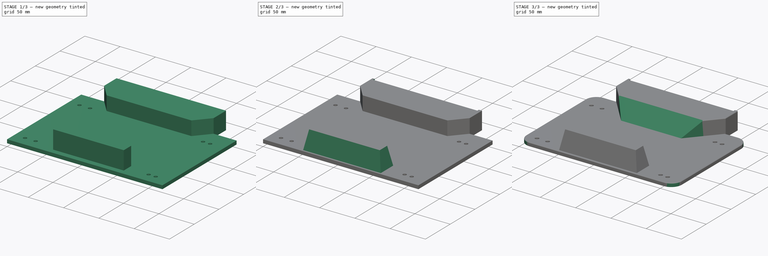
[diagram: build sequence overview — one tinted view per stage of 3, left to right]
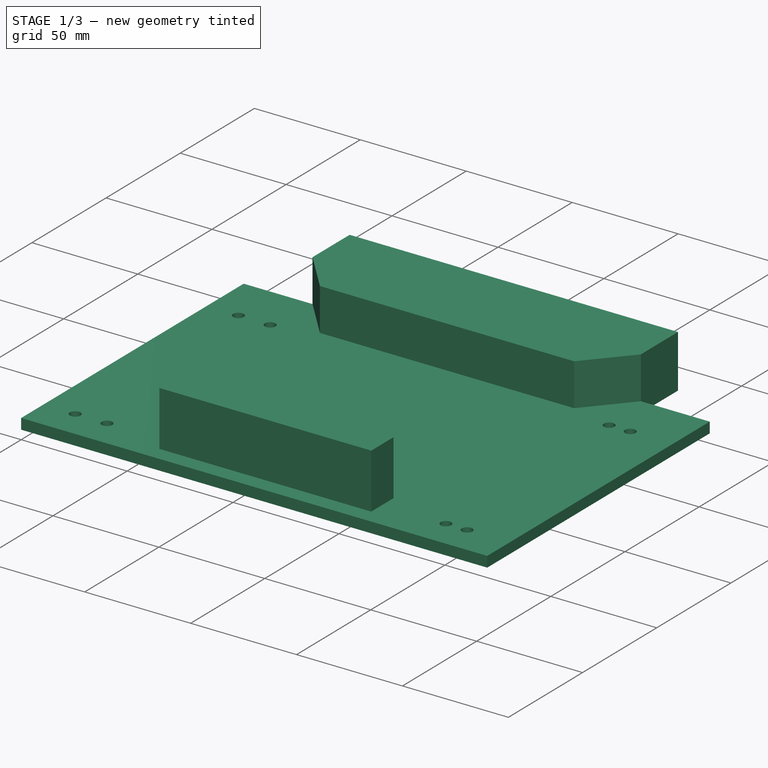
[diagram: stage 1 of 3 — iso view after this stage's code; geometry added in this stage tinted green]
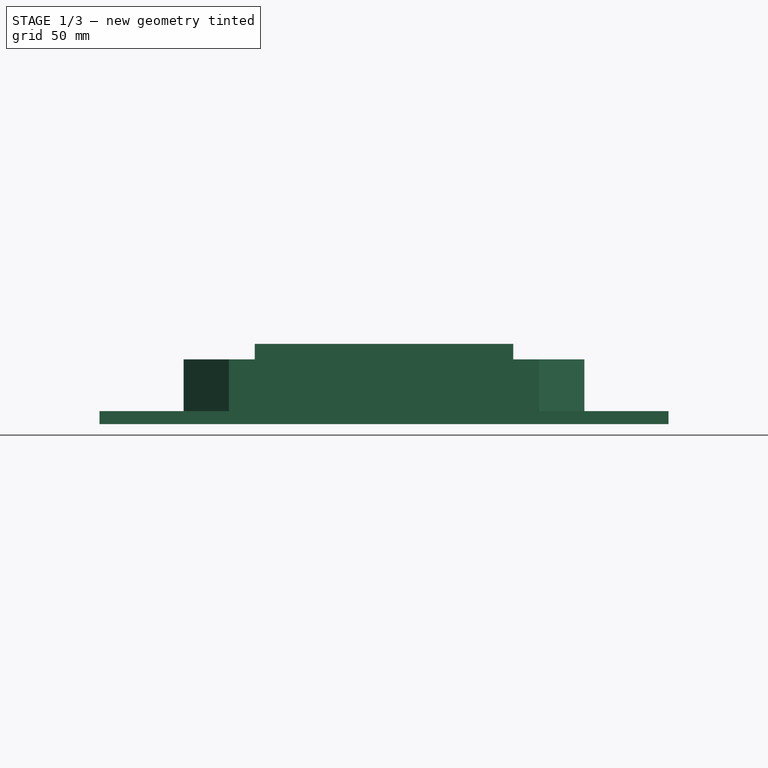
[diagram: stage 1 of 3 — front view after this stage's code; geometry added in this stage tinted green]
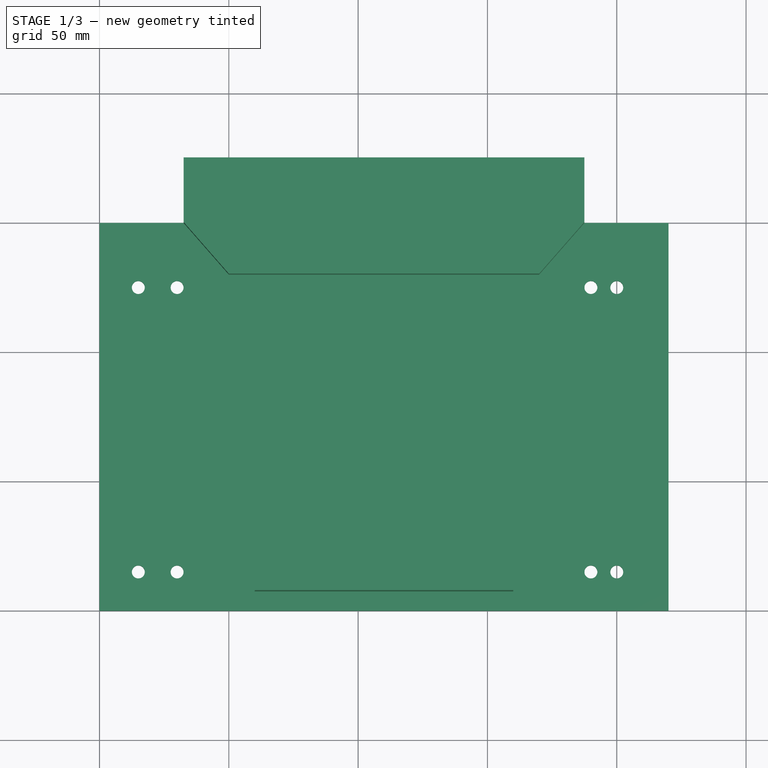
[diagram: stage 1 of 3 — top view after this stage's code; geometry added in this stage tinted green]
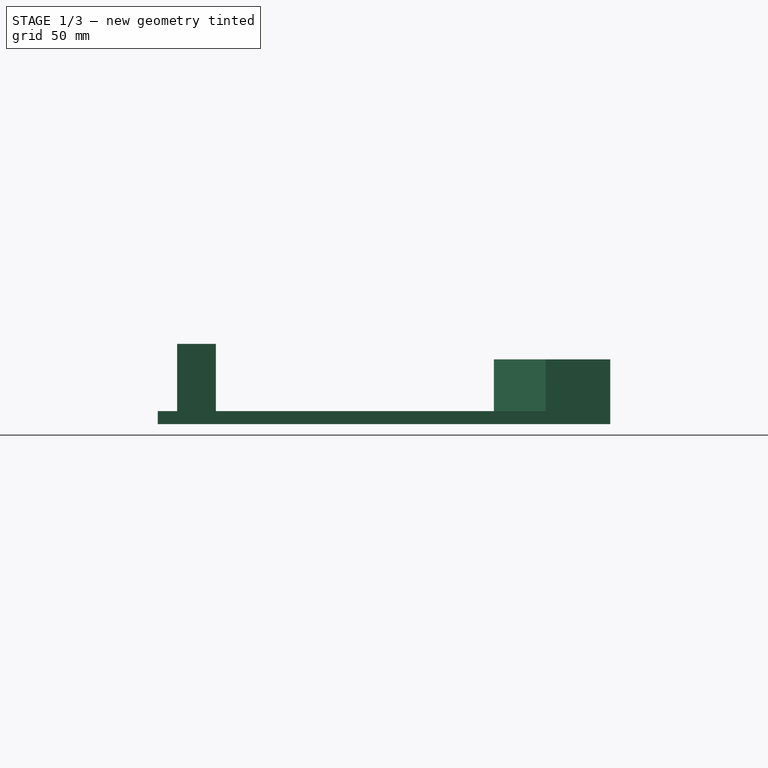
[diagram: stage 1 of 3 — right view after this stage's code; geometry added in this stage tinted green]
FCSTD DOCUMENT  (FreeCAD 1.0R39109 (Git))
Label: trashBinBase
License: All rights reserved
LicenseURL: https://en.wikipedia.org/wiki/All_rights_reserved
objects: PartDesign::Pad×3, Sketcher::SketchObject×2, PartDesign::Chamfer×2, PartDesign::Fillet×2, PartDesign::Pocket×1, PartDesign::Body×1
note: 29 computed .brp shape members not serialized (recipe doc carries the construction recipe); baked Part::Feature solids carry a one-line shape summary decoded from their .brp

FEATURE [Sketcher::SketchObject] Sketch
  ArcFitTolerance = 1e-06
  AttachmentSupport = -> [XY_Plane]
  FullyConstrained = true
  MakeInternals = false
  MapMode = 5
  sketch-geometry (35):
    g0: LineSegment StartX=0 StartY=0 StartZ=0 EndX=220 EndY=0 EndZ=0
    g1: LineSegment StartX=220 StartY=0 StartZ=0 EndX=220 EndY=150 EndZ=0
    g2: LineSegment [constr] StartX=220 StartY=150 StartZ=0 EndX=0 EndY=150 EndZ=0
    g3: LineSegment StartX=0 StartY=150 StartZ=0 EndX=0 EndY=0 EndZ=0
    g4: LineSegment [constr] StartX=0 StartY=125 StartZ=0 EndX=220 EndY=125 EndZ=0
    g5: Circle CenterX=15 CenterY=125 CenterZ=0 NormalX=0 NormalY=0 NormalZ=1 AngleXU=0 Radius=2.5
    g6: Circle CenterX=30 CenterY=125 CenterZ=0 NormalX=0 NormalY=0 NormalZ=1 AngleXU=0 Radius=2.5
    g7: Circle CenterX=190 CenterY=125 CenterZ=0 NormalX=0 NormalY=0 NormalZ=1 AngleXU=0 Radius=2.5
    g8: Circle CenterX=200 CenterY=125 CenterZ=0 NormalX=0 NormalY=0 NormalZ=1 AngleXU=0 Radius=2.5
    g9: LineSegment StartX=187.5 StartY=175 StartZ=0 EndX=32.5 EndY=175 EndZ=0
    g10: LineSegment [constr] StartX=0 StartY=150 StartZ=0 EndX=32.5 EndY=175 EndZ=0
    g11: LineSegment [constr] StartX=187.5 StartY=175 StartZ=0 EndX=220 EndY=150 EndZ=0
    g12: LineSegment [constr] StartX=0 StartY=75 StartZ=0 EndX=220 EndY=75 EndZ=0
    g13: Circle CenterX=200 CenterY=15 CenterZ=0 NormalX=0 NormalY=0 NormalZ=1 AngleXU=0 Radius=2.5
    g14: Circle CenterX=190 CenterY=15 CenterZ=0 NormalX=0 NormalY=0 NormalZ=1 AngleXU=0 Radius=2.5
    g15: Circle CenterX=30 CenterY=15 CenterZ=0 NormalX=0 NormalY=0 NormalZ=1 AngleXU=0 Radius=2.5
    g16: Circle CenterX=15 CenterY=15 CenterZ=0 NormalX=0 NormalY=0 NormalZ=1 AngleXU=0 Radius=2.5
    g17: LineSegment [constr] StartX=0 StartY=15 StartZ=0 EndX=220 EndY=15 EndZ=0
    g18: LineSegment [constr] StartX=15 StartY=125 StartZ=0 EndX=15 EndY=0 EndZ=0
    g19: LineSegment [constr] StartX=30 StartY=125 StartZ=0 EndX=30 EndY=0 EndZ=0
    g20: LineSegment [constr] StartX=190 StartY=125 StartZ=0 EndX=190 EndY=0 EndZ=0
    g21: LineSegment [constr] StartX=200 StartY=125 StartZ=0 EndX=200 EndY=0 EndZ=0
    g22: LineSegment StartX=50 StartY=130 StartZ=0 EndX=170 EndY=130 EndZ=0
    g23: LineSegment StartX=32.5 StartY=175 StartZ=0 EndX=32.5 EndY=150 EndZ=0
    g24: LineSegment StartX=32.5 StartY=150 StartZ=0 EndX=50 EndY=130 EndZ=0
    g25: LineSegment StartX=187.5 StartY=175 StartZ=0 EndX=187.5 EndY=150 EndZ=0
    g26: LineSegment StartX=187.5 StartY=150 StartZ=0 EndX=170 EndY=130 EndZ=0
    g27: LineSegment StartX=0 StartY=150 StartZ=0 EndX=32.5 EndY=150 EndZ=0
    g28: LineSegment StartX=187.5 StartY=150 StartZ=0 EndX=220 EndY=150 EndZ=0
    g29: LineSegment StartX=60 StartY=22.5 StartZ=0 EndX=60 EndY=7.5 EndZ=0
    g30: LineSegment StartX=60 StartY=7.5 StartZ=0 EndX=160 EndY=7.5 EndZ=0
    g31: LineSegment StartX=160 StartY=7.5 StartZ=0 EndX=160 EndY=22.5 EndZ=0
    g32: LineSegment StartX=160 StartY=22.5 StartZ=0 EndX=60 EndY=22.5 EndZ=0
    g33: LineSegment [constr] StartX=60 StartY=15 StartZ=0 EndX=160 EndY=15 EndZ=0
    g34: LineSegment [constr] StartX=110 StartY=22.5 StartZ=0 EndX=110 EndY=0 EndZ=0
  constraints (99):
    c: Coincident(g0,g1)
    c: Coincident(g1,g2)
    c: Coincident(g2,g3)
    c: Coincident(g3,g0)
    c: Horizontal(g0)
    c: Horizontal(g2)
    c: Vertical(g1)
    c: Vertical(g3)
    c: Coincident(g0,g-1)
    c: DistanceX(g2,g2) = 220
    c: DistanceY(g3,g3) = 150
    c: PointOnObject(g5,g4)
    c: PointOnObject(g6,g4)
    c: Equal(g5,g6)
    c: Equal(g6,g7)
    c: Equal(g7,g8)
    c: Diameter(g6) = 5
    c: PointOnObject(g4,g3)
    c: PointOnObject(g4,g1)
    c: DistanceX(g5,g6) = 15
    c: PointOnObject(g8,g4)
    c: PointOnObject(g7,g4)
    c: Horizontal(g4)
    c: DistanceX(g7,g8) = 10
    c: DistanceX(g6,g7) = 160
    c: Distance(g5,g2) = 25
    c: DistanceX(g4,g5) = 15
    c: Horizontal(g9)
    c: Coincident(g10,g2)
    c: Coincident(g10,g9)
    c: Coincident(g11,g1)
    c: Equal(g11,g10)
    c: DistanceX(g9,g9) = 155
    c: Symmetric(g3,g3,g12)
    c: Symmetric(g1,g1,g12)
    c: Equal(g16,g15)
    c: Equal(g15,g14)
    c: Equal(g14,g13)
    c: Diameter(g15) = 5
    c: PointOnObject(g17,g3)
    c: PointOnObject(g17,g1)
    c: Horizontal(g17)
    c: Coincident(g18,g5)
    c: PointOnObject(g18,g0)
    c: Vertical(g18)
    c: Coincident(g19,g6)
    c: PointOnObject(g19,g0)
    c: Vertical(g19)
    c: Coincident(g20,g7)
    c: PointOnObject(g20,g0)
    c: Vertical(g20)
    c: Coincident(g21,g8)
    c: PointOnObject(g21,g0)
    c: Vertical(g21)
    c: PointOnObject(g16,g17)
    c: PointOnObject(g16,g18)
    c: PointOnObject(g15,g17)
    c: PointOnObject(g15,g19)
    c: PointOnObject(g14,g20)
    c: PointOnObject(g14,g17)
    c: PointOnObject(g13,g17)
    c: PointOnObject(g13,g21)
    c: Distance(g0,g17) = 15
    c: Horizontal(g22)
    c: Distance(g9,g2) = 25
    c: DistanceY(g22,g9) = 45
    c: Coincident(g23,g9)
    c: PointOnObject(g23,g2)
    c: Vertical(g23)
    c: Coincident(g24,g23)
    c: Coincident(g24,g22)
    c: Coincident(g25,g9)
    c: PointOnObject(g25,g2)
    c: Vertical(g25)
    c: Coincident(g26,g25)
    c: Coincident(g26,g22)
    c: Coincident(g11,g9)
    c: Coincident(g27,g2)
    c: Coincident(g27,g23)
    c: Coincident(g28,g25)
    c: Coincident(g28,g1)
    c: Coincident(g29,g30)
    c: Coincident(g30,g31)
    c: Coincident(g31,g32)
    c: Coincident(g32,g29)
    c: Vertical(g29)
    c: Vertical(g31)
    c: Horizontal(g30)
    c: Horizontal(g32)
    c: DistanceY(g31,g31) = 15
    c: DistanceX(g32,g32) = 100
    c: Symmetric(g29,g29,g33)
    c: Symmetric(g31,g31,g33)
    c: PointOnObject(g33,g17)
    c: Symmetric(g32,g32,g34)
    c: Symmetric(g0,g0,g34)
    c: Vertical(g34)
    c: Equal(g24,g26)
    c: DistanceX(g22,g22) = 120
FEATURE [PartDesign::Pad] Pad
  Direction = (0,0,1)
  Length = 5
  Length2 = 10
  Profile = -> Sketch [Edge4,Edge5,Edge3,Edge2,Edge1,Edge8,Edge7,Edge6,Edge16,Edge17,Edge18,Edge19,Edge13,Edge12,Edge14,Edge15]
  ReferenceAxis = -> Sketch [N_Axis]
  Refine = true
  Suppressed = false
  Type = 0
FEATURE [PartDesign::Pad] Pad001
  BaseFeature = -> Pad
  Direction = (0,0,1)
  Length = 25
  Length2 = 10
  Profile = -> Sketch [Edge11,Edge3,Edge2,Edge1,Edge9,Edge10]
  ReferenceAxis = -> Sketch [N_Axis]
  Refine = true
  Suppressed = false
  Type = 0
FEATURE [PartDesign::Pad] Pad002
  BaseFeature = -> Pad001
  Direction = (0,0,1)
  Length = 31
  Length2 = 10
  Profile = -> Sketch [Edge23,Edge21,Edge22,Edge20]
  ReferenceAxis = -> Sketch [N_Axis]
  Refine = true
  Suppressed = false
  Type = 0
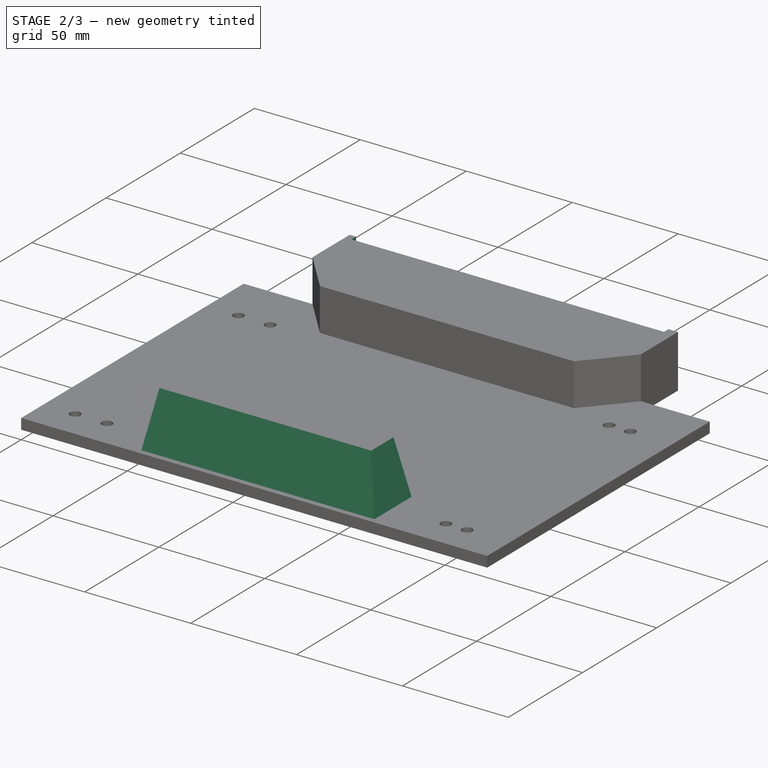
[diagram: stage 2 of 3 — iso view after this stage's code; geometry added in this stage tinted green]
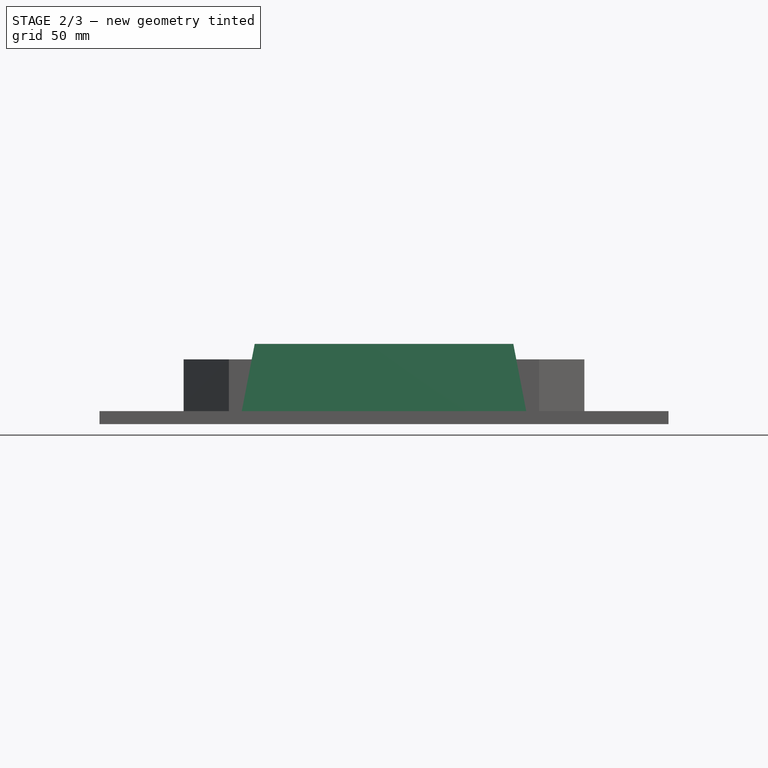
[diagram: stage 2 of 3 — front view after this stage's code; geometry added in this stage tinted green]
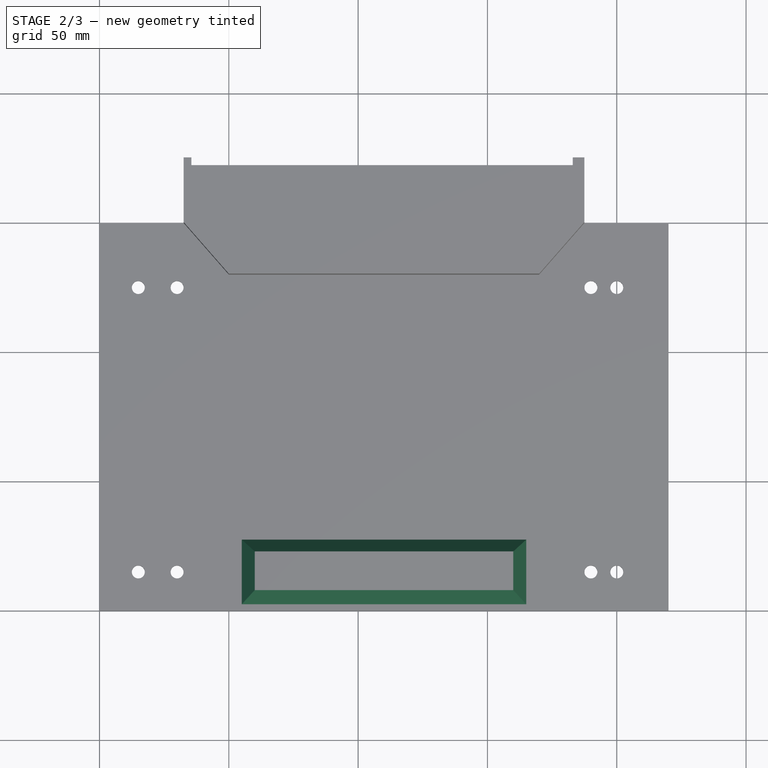
[diagram: stage 2 of 3 — top view after this stage's code; geometry added in this stage tinted green]
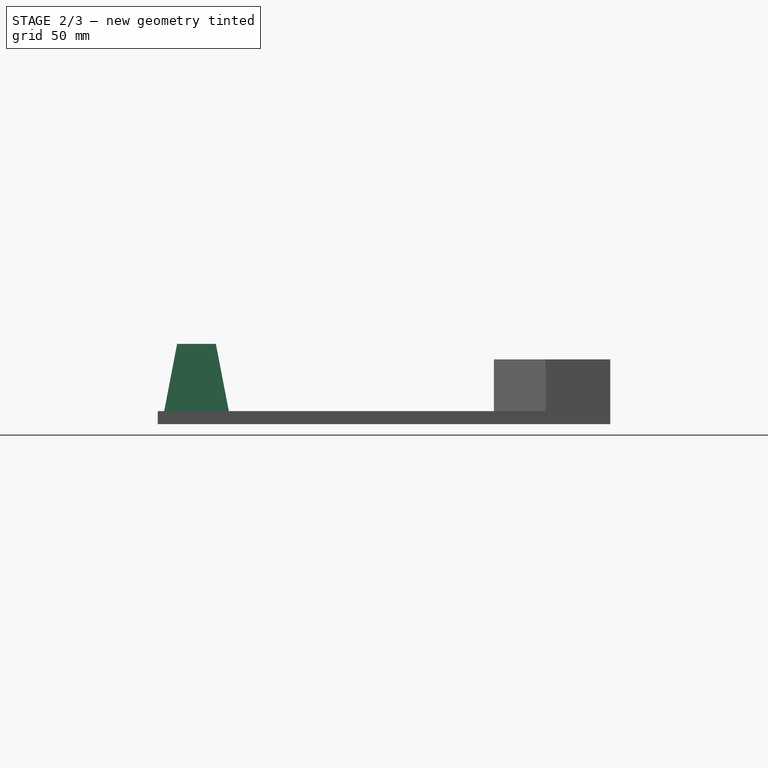
[diagram: stage 2 of 3 — right view after this stage's code; geometry added in this stage tinted green]
FEATURE [Sketcher::SketchObject] Sketch001
  ArcFitTolerance = 1e-06
  AttachmentSupport = -> [Pad002]
  ExternalGeometry = -> [Pad002]
  FullyConstrained = true
  MakeInternals = false
  MapMode = 5
  Placement = pos=(0,175,0) rot=(0,0.707107,0.707107;3.14159rad)
  sketch-geometry (4):
    g0: LineSegment StartX=-183 StartY=25 StartZ=0 EndX=-183 EndY=0 EndZ=0
    g1: LineSegment StartX=-35.5 StartY=25 StartZ=0 EndX=-35.5 EndY=0 EndZ=0
    g2: LineSegment StartX=-183 StartY=25 StartZ=0 EndX=-35.5 EndY=25 EndZ=0
    g3: LineSegment StartX=-183 StartY=0 StartZ=0 EndX=-35.5 EndY=0 EndZ=0
  constraints (12):
    c: PointOnObject(g0,g-3)
    c: PointOnObject(g0,g-1)
    c: Vertical(g0)
    c: PointOnObject(g1,g-3)
    c: PointOnObject(g1,g-1)
    c: Vertical(g1)
    c: Coincident(g2,g0)
    c: Coincident(g2,g1)
    c: Distance(g-5,g1) = 3
    c: Distance(g-4,g0) = 3
    c: Coincident(g3,g0)
    c: Coincident(g3,g1)
FEATURE [PartDesign::Pocket] Pocket
  BaseFeature = -> Pad002
  Direction = (0,-1,2e-16)
  Length = 3
  Length2 = 5
  Profile = -> Sketch001
  ReferenceAxis = -> Sketch001 [N_Axis]
  Refine = true
  Suppressed = false
  Type = 0
FEATURE [PartDesign::Chamfer] Chamfer
  Angle = 45
  Base = -> Pocket [Edge38,Edge39,Edge40,Edge37]
  BaseFeature = -> Pocket
  ChamferType = 1
  FlipDirection = false
  Refine = true
  Size = 5
  Size2 = 25.99
  SupportTransform = false
  Suppressed = false
  UseAllEdges = false
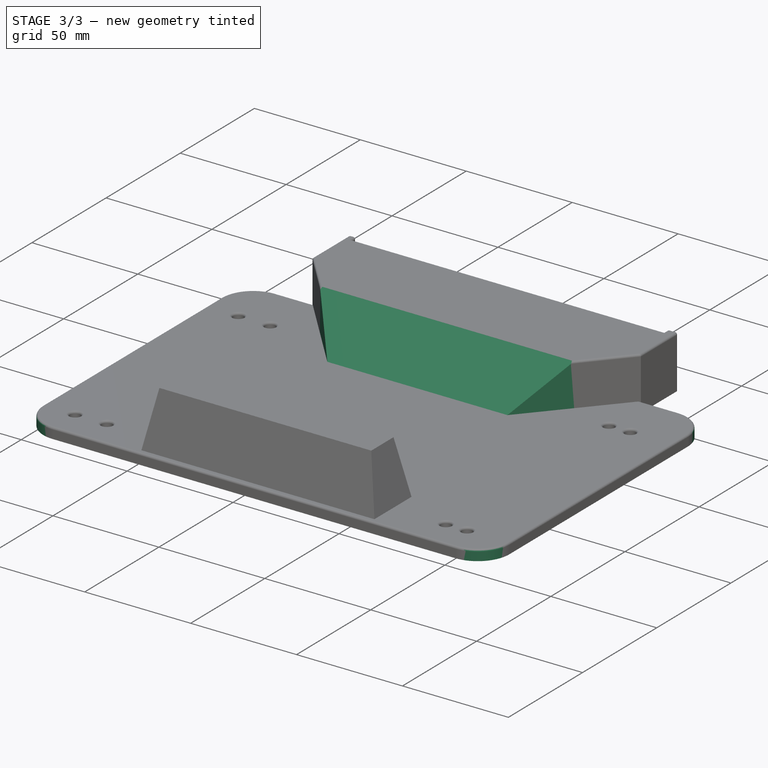
[diagram: stage 3 of 3 — iso view after this stage's code; geometry added in this stage tinted green]
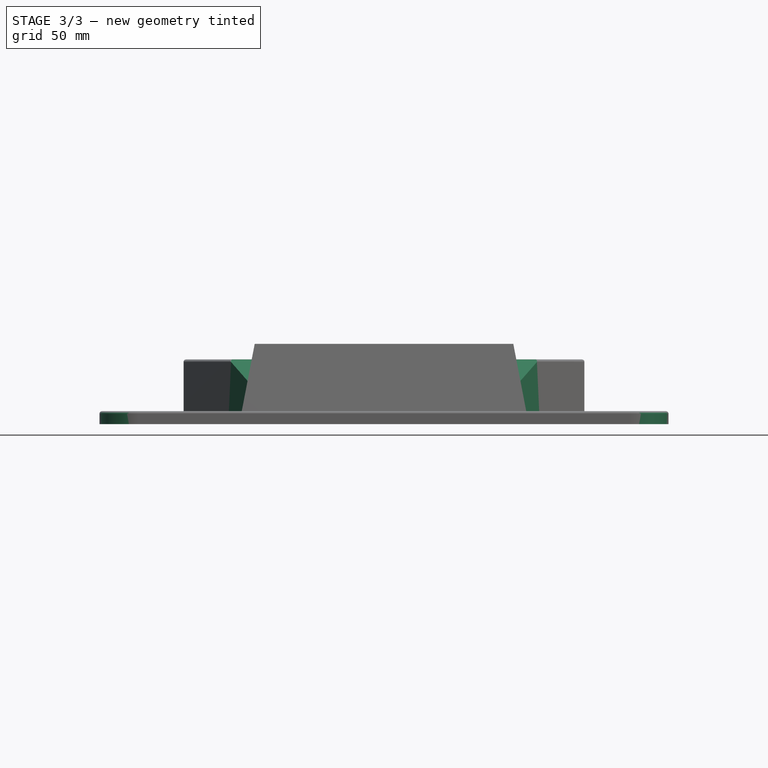
[diagram: stage 3 of 3 — front view after this stage's code; geometry added in this stage tinted green]
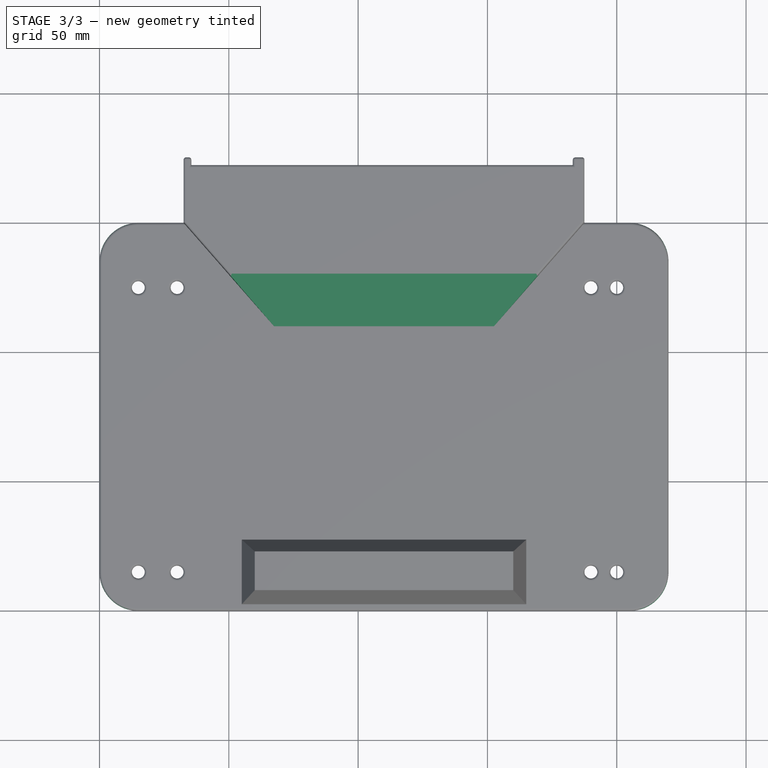
[diagram: stage 3 of 3 — top view after this stage's code; geometry added in this stage tinted green]
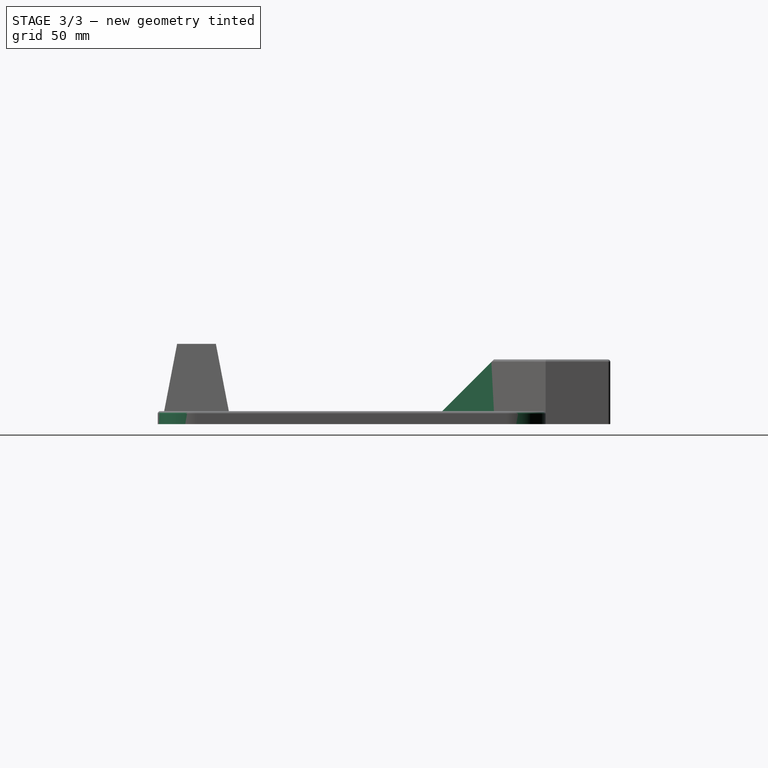
[diagram: stage 3 of 3 — right view after this stage's code; geometry added in this stage tinted green]
FEATURE [PartDesign::Chamfer] Chamfer001
  Angle = 45
  Base = -> Chamfer [Edge9]
  BaseFeature = -> Chamfer
  ChamferType = 0
  FlipDirection = false
  Refine = true
  Size = 19.99
  Size2 = 1
  SupportTransform = false
  Suppressed = false
  UseAllEdges = false
FEATURE [PartDesign::Fillet] Fillet
  Base = -> Chamfer001 [Edge39,Edge37,Edge30,Edge35]
  BaseFeature = -> Chamfer001
  Radius = 15
  Refine = true
  SupportTransform = false
  Suppressed = false
  UseAllEdges = false
FEATURE [PartDesign::Fillet] Fillet001
  Base = -> Fillet [Edge12,Edge45,Edge89,Edge95,Edge90,Edge91,Edge92,Edge93,Edge94,Edge86,Edge107,Edge87,Edge34,Edge21,Edge22,Edge26,Edge25,Edge23,Edge24,Edge20,Edge19,Edge104]
  BaseFeature = -> Fillet
  Radius = 1
  Refine = true
  SupportTransform = false
  Suppressed = false
  UseAllEdges = false
FEATURE [PartDesign::Body] Body
  AllowCompound = false
  Group = -> [Sketch,Pad,Pad001,Pad002,Sketch001,Pocket,Chamfer,Chamfer001,Fillet,Fillet001]
  Origin = -> Origin
  Tip = -> Fillet001
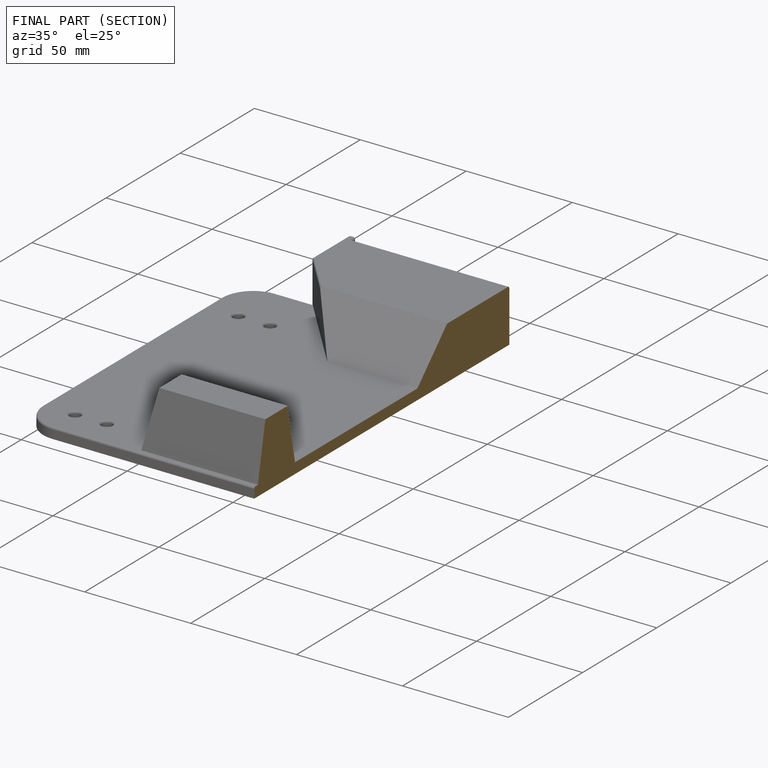
[diagram: finished part — half-section view (interior)]
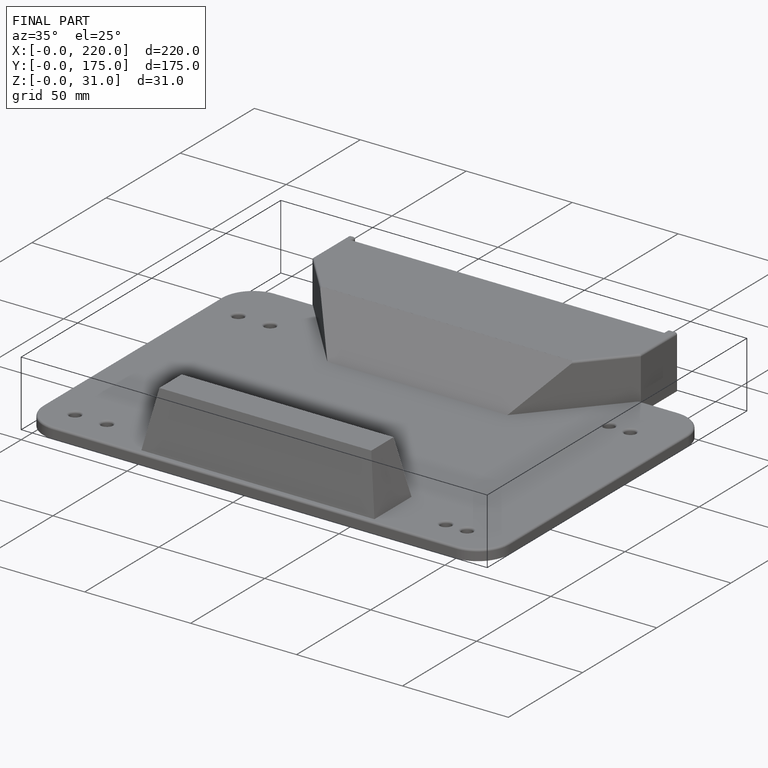
[diagram: finished part — iso view with bounding-box wireframe]
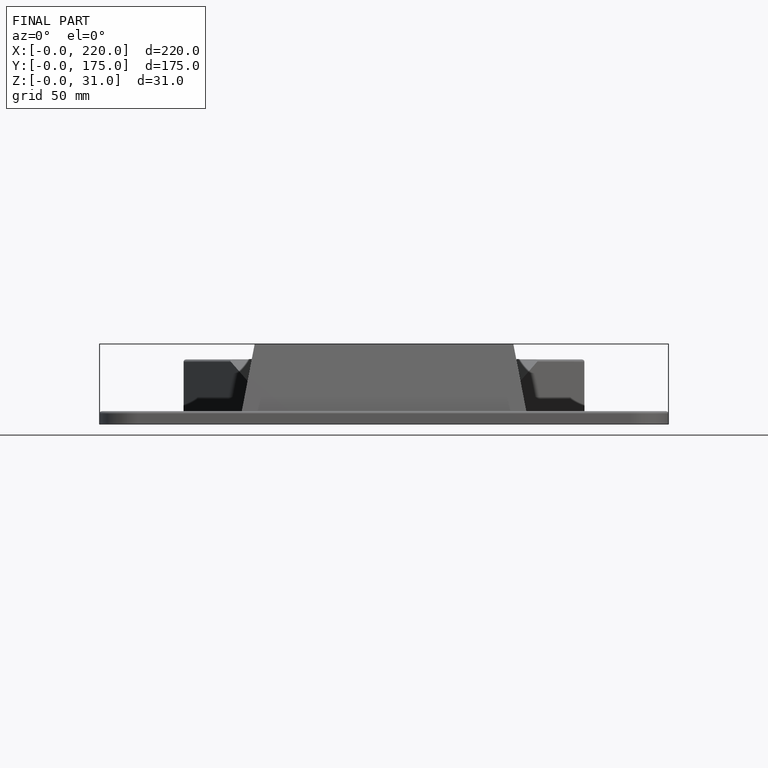
[diagram: finished part — front view with bounding-box wireframe]
